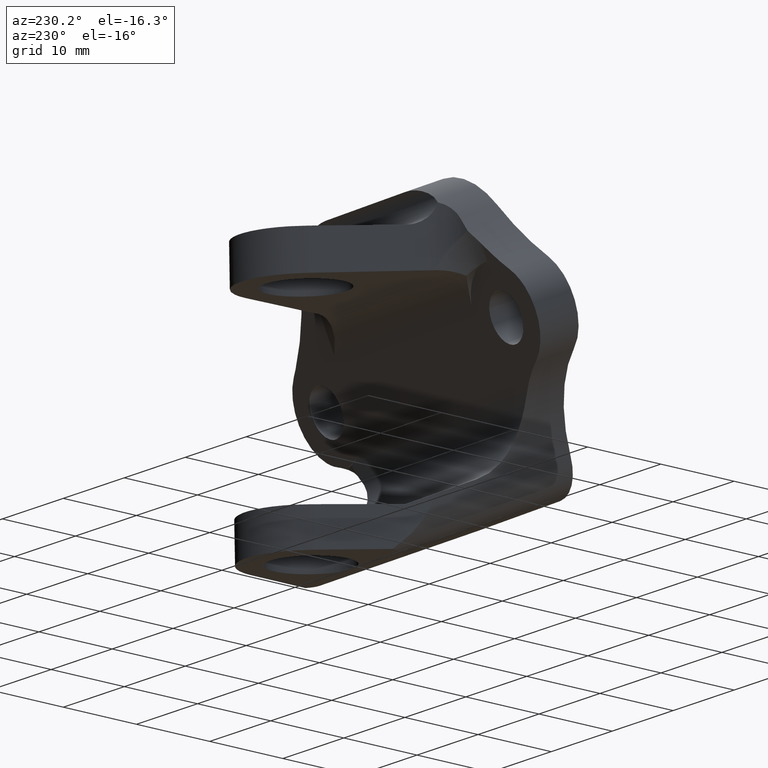
[diagram: clean part render]
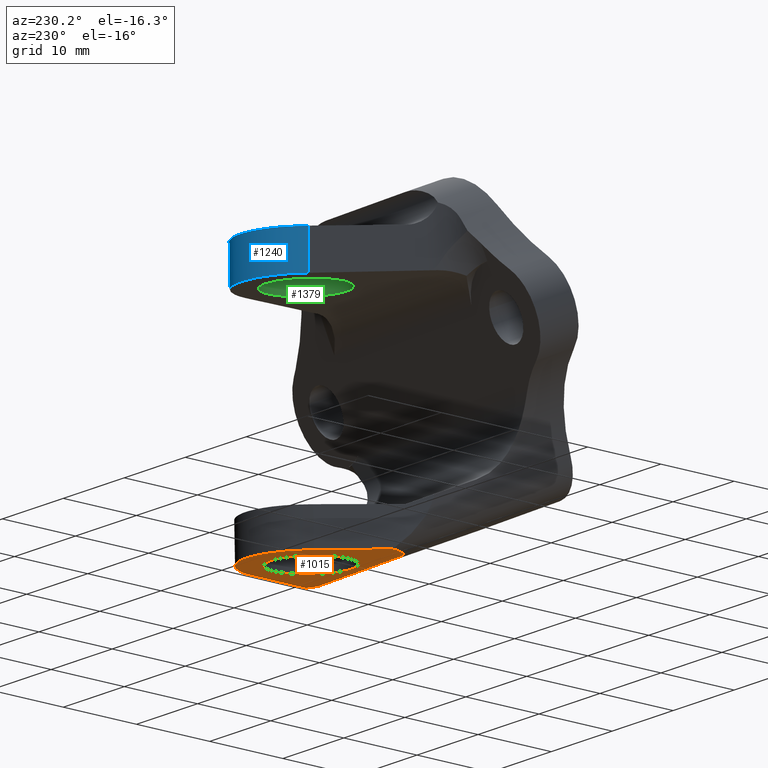
[diagram: same view with three faces highlighted in distinct colors, each labeled with its STEP entity id]
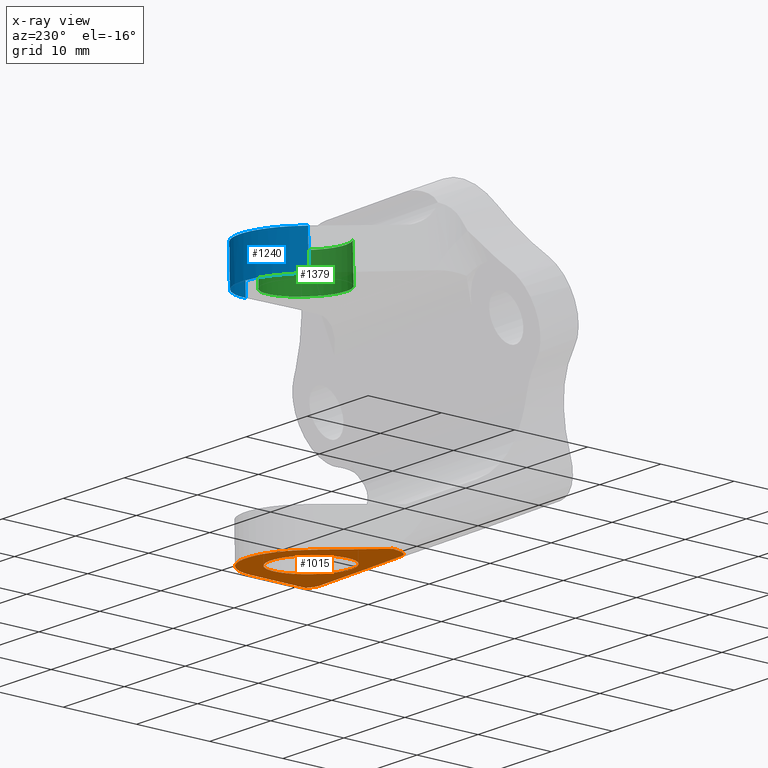
[diagram: x-ray of the same camera — body ghosted, the three highlighted faces saturated]
A machine part, auxiliary view with three faces highlighted in distinct colors.
The next image is the same camera in x-ray (body ghosted, the three faces saturated) — at least one of them is partly hidden behind the body in this view.
Their STEP definitions:

[orange] entity #1015 — the highlighted planar face has unit normal (-0.054, 0.0684, 0.9962).
#689=CARTESIAN_POINT('Vertex',(1325.33078434,272.202735292,140.875413136)) ;
#693=CARTESIAN_POINT('Control Point',(1325.33078434,272.202735292,140.875413136)) ;
#694=CARTESIAN_POINT('Control Point',(1325.69714129,272.138995932,140.899645128)) ;
#695=CARTESIAN_POINT('Control Point',(1326.08154677,272.170504241,140.918310004)) ;
#696=CARTESIAN_POINT('Control Point',(1326.44139555,272.2968065,140.929139325)) ;
#697=CARTESIAN_POINT('Control Point',(1326.77508478,272.468900159,140.935399791)) ;
#698=CARTESIAN_POINT('Control Point',(1327.08483714,272.677212456,140.937876748)) ;
#699=CARTESIAN_POINT('Vertex',(1327.08483396,272.677211334,140.937876608)) ;
#841=CARTESIAN_POINT('Line Origine',(1326.10066523,277.221816695,140.57236881)) ;
#845=CARTESIAN_POINT('Vertex',(1325.11649649,281.766422056,140.206861013)) ;
#879=CARTESIAN_POINT('Line Origine',(1316.85831356,273.676789123,140.315017488)) ;
#883=CARTESIAN_POINT('Vertex',(1308.38584277,275.150842954,139.75462184)) ;
#905=CARTESIAN_POINT('Axis2P3D Location',(1314.01555999,261.549827085,140.993975968)) ;
#911=CARTESIAN_POINT('Control Point',(1308.38584277,275.150842954,139.75462184)) ;
#912=CARTESIAN_POINT('Control Point',(1308.19572612,275.18391975,139.742046931)) ;
#913=CARTESIAN_POINT('Control Point',(1308.01011517,275.242322677,139.727976519)) ;
#914=CARTESIAN_POINT('Control Point',(1307.83388941,275.325229815,139.71273149)) ;
#915=CARTESIAN_POINT('Control Point',(1307.43662325,275.571389741,139.674293807)) ;
#916=CARTESIAN_POINT('Control Point',(1307.10658676,275.905141798,139.633482652)) ;
#917=CARTESIAN_POINT('Control Point',(1306.93499082,276.120176066,139.609412576)) ;
#918=CARTESIAN_POINT('Control Point',(1306.56608302,276.666681629,139.551880645)) ;
#919=CARTESIAN_POINT('Control Point',(1306.28737045,277.265935929,139.495613223)) ;
#920=CARTESIAN_POINT('Control Point',(1306.14741292,277.62545436,139.463332936)) ;
#921=CARTESIAN_POINT('Control Point',(1306.026224,277.992095768,139.431580476)) ;
#922=CARTESIAN_POINT('Control Point',(1305.92107699,278.363381398,139.400378344)) ;
#923=CARTESIAN_POINT('Vertex',(1305.92107717,278.363380445,139.40037842)) ;
#926=CARTESIAN_POINT('Line Origine',(1308.45884,281.641412057,139.3127339)) ;
#930=CARTESIAN_POINT('Vertex',(1310.99660283,284.919443669,139.22508938)) ;
#934=CARTESIAN_POINT('Control Point',(1310.99660283,284.919443669,139.22508938)) ;
#935=CARTESIAN_POINT('Control Point',(1311.4502488,285.505418766,139.209422202)) ;
#936=CARTESIAN_POINT('Control Point',(1311.97162548,286.039152189,139.201014031)) ;
#937=CARTESIAN_POINT('Control Point',(1312.55265291,286.510175583,139.200146077)) ;
#938=CARTESIAN_POINT('Control Point',(1313.81296386,287.309704988,139.213524543)) ;
#939=CARTESIAN_POINT('Control Point',(1315.22177459,287.800888308,139.256131138)) ;
#940=CARTESIAN_POINT('Control Point',(1315.95151931,287.96362761,139.284498843)) ;
#941=CARTESIAN_POINT('Control Point',(1317.4347658,288.117368757,139.354318519)) ;
#942=CARTESIAN_POINT('Control Point',(1318.91264724,287.928343696,139.447392413)) ;
#943=CARTESIAN_POINT('Control Point',(1319.63702791,287.748277808,139.499017066)) ;
#944=CARTESIAN_POINT('Control Point',(1321.0301654,287.223626525,139.610553011)) ;
#945=CARTESIAN_POINT('Control Point',(1322.26515786,286.394187697,139.734454903)) ;
#946=CARTESIAN_POINT('Control Point',(1322.83137693,285.909298888,139.798447038)) ;
#947=CARTESIAN_POINT('Control Point',(1323.7882929,284.873481449,139.921455726)) ;
#948=CARTESIAN_POINT('Control Point',(1324.49564065,283.655573857,140.043447736)) ;
#949=CARTESIAN_POINT('Control Point',(1324.76862991,283.046858086,140.100054918)) ;
#950=CARTESIAN_POINT('Control Point',(1324.97624966,282.414041218,140.154775114)) ;
#951=CARTESIAN_POINT('Control Point',(1325.11649649,281.766422056,140.206861013)) ;
#962=CARTESIAN_POINT('Control Point',(1314.24842243,276.098215447,140.007251638)) ;
#963=CARTESIAN_POINT('Control Point',(1314.71159279,275.740970401,140.056891361)) ;
#964=CARTESIAN_POINT('Control Point',(1315.22749084,275.451835097,140.104709983)) ;
#965=CARTESIAN_POINT('Control Point',(1315.78288649,275.2410752,140.149285379)) ;
#966=CARTESIAN_POINT('Control Point',(1316.93995376,274.988772033,140.229320301)) ;
#967=CARTESIAN_POINT('Control Point',(1318.12202528,275.079632401,140.287138004)) ;
#968=CARTESIAN_POINT('Control Point',(1318.70270618,275.212114488,140.309506019)) ;
#969=CARTESIAN_POINT('Control Point',(1319.8085052,275.643278279,140.339814561)) ;
#970=CARTESIAN_POINT('Control Point',(1320.74474698,276.373386183,140.340399657)) ;
#971=CARTESIAN_POINT('Control Point',(1321.15582478,276.804898563,140.33303582)) ;
#972=CARTESIAN_POINT('Control Point',(1321.83943206,277.775165053,140.303433371)) ;
#973=CARTESIAN_POINT('Control Point',(1322.21573928,278.89978346,140.246575081)) ;
#974=CARTESIAN_POINT('Control Point',(1322.31943097,279.485693948,140.211947567)) ;
#975=CARTESIAN_POINT('Control Point',(1322.35171839,280.669853995,140.13235613)) ;
#976=CARTESIAN_POINT('Control Point',(1322.04196226,281.81203885,140.037111936)) ;
#977=CARTESIAN_POINT('Control Point',(1321.80351296,282.355964854,139.986827024)) ;
#978=CARTESIAN_POINT('Control Point',(1321.37858872,283.031381355,139.917404418)) ;
#979=CARTESIAN_POINT('Control Point',(1320.83435354,283.604740871,139.848526494)) ;
#980=CARTESIAN_POINT('Control Point',(1320.68594205,283.745779187,139.830795691)) ;
#981=CARTESIAN_POINT('Control Point',(1320.53052401,283.878937646,139.813226463)) ;
#982=CARTESIAN_POINT('Control Point',(1320.36866681,284.003778717,139.795879614)) ;
#983=CARTESIAN_POINT('Vertex',(1314.24842243,276.098215447,140.007251638)) ;
#985=CARTESIAN_POINT('Vertex',(1320.36866681,284.003778717,139.795879614)) ;
#989=CARTESIAN_POINT('Control Point',(1320.36866681,284.003778717,139.795879614)) ;
#990=CARTESIAN_POINT('Control Point',(1319.90549645,284.361023763,139.746239891)) ;
#991=CARTESIAN_POINT('Control Point',(1319.38959839,284.650159067,139.698421268)) ;
#992=CARTESIAN_POINT('Control Point',(1318.83420275,284.860918964,139.653845873)) ;
#993=CARTESIAN_POINT('Control Point',(1317.67713548,285.11322213,139.573810951)) ;
#994=CARTESIAN_POINT('Control Point',(1316.49506396,285.022361763,139.515993248)) ;
#995=CARTESIAN_POINT('Control Point',(1315.91438306,284.889879675,139.493625233)) ;
#996=CARTESIAN_POINT('Control Point',(1314.80858404,284.458715885,139.46331669)) ;
#997=CARTESIAN_POINT('Control Point',(1313.87234226,283.728607982,139.462731594)) ;
#998=CARTESIAN_POINT('Control Point',(1313.46126446,283.297095598,139.470095431)) ;
#999=CARTESIAN_POINT('Control Point',(1312.77765718,282.326829109,139.49969788)) ;
#1000=CARTESIAN_POINT('Control Point',(1312.40134996,281.202210702,139.55655617)) ;
#1001=CARTESIAN_POINT('Control Point',(1312.29765827,280.616300217,139.591183684)) ;
#1002=CARTESIAN_POINT('Control Point',(1312.26537084,279.432140169,139.670775122)) ;
#1003=CARTESIAN_POINT('Control Point',(1312.57512698,278.289955313,139.766019315)) ;
#1004=CARTESIAN_POINT('Control Point',(1312.81357628,277.746029311,139.816304227)) ;
#1005=CARTESIAN_POINT('Control Point',(1313.23850052,277.070612808,139.885726833)) ;
#1006=CARTESIAN_POINT('Control Point',(1313.7827357,276.497253293,139.954604757)) ;
#1007=CARTESIAN_POINT('Control Point',(1313.93114719,276.356214977,139.97233556)) ;
#1008=CARTESIAN_POINT('Control Point',(1314.08656523,276.223056517,139.989904788)) ;
#1009=CARTESIAN_POINT('Control Point',(1314.24842243,276.098215447,140.007251638)) ;
#842=DIRECTION('Vector Direction',(0.211000658998,-0.974339759336,0.0783629713562)) ;
#880=DIRECTION('Vector Direction',(0.983115227494,-0.171043938009,0.0650263080575)) ;
#906=DIRECTION('Axis2P3D Direction',(-0.0539859037557,0.0684295973398,0.996194214199)) ;
#907=DIRECTION('Axis2P3D XDirection',(0.174842705495,0.982884205529,-0.0580402175807)) ;
#927=DIRECTION('Vector Direction',(0.612026158095,0.790555000159,-0.0211370180321)) ;
#908=AXIS2_PLACEMENT_3D('Plane Axis2P3D',#905,#906,#907) ;
#954=ORIENTED_EDGE('',*,*,#925,.T.) ;
#955=ORIENTED_EDGE('',*,*,#932,.T.) ;
#956=ORIENTED_EDGE('',*,*,#952,.T.) ;
#957=ORIENTED_EDGE('',*,*,#847,.T.) ;
#958=ORIENTED_EDGE('',*,*,#701,.F.) ;
#959=ORIENTED_EDGE('',*,*,#885,.F.) ;
#1012=ORIENTED_EDGE('',*,*,#987,.T.) ;
#1013=ORIENTED_EDGE('',*,*,#1010,.T.) ;
#1014=FACE_BOUND('',#1011,.T.) ;
#843=VECTOR('Line Direction',#842,1.) ;
#881=VECTOR('Line Direction',#880,1.) ;
#928=VECTOR('Line Direction',#927,1.) ;
#1015=ADVANCED_FACE('Hauptk\X2\00F6\X0\rper',(#960,#1014),#909,.F.) ;
#692=B_SPLINE_CURVE_WITH_KNOTS('',5,(#693,#694,#695,#696,#697,#698),.UNSPECIFIED.,.F.,.U.,(6,6),(0.,2.63502666146),.UNSPECIFIED.) ;
#910=B_SPLINE_CURVE_WITH_KNOTS('',5,(#911,#912,#913,#914,#915,#916,#917,#918,#919,#920,#921,#922),.UNSPECIFIED.,.F.,.U.,(6,3,3,6),(0.,1.36741628427,3.29998140105,6.03753938532),.UNSPECIFIED.) ;
#933=B_SPLINE_CURVE_WITH_KNOTS('',5,(#934,#935,#936,#937,#938,#939,#940,#941,#942,#943,#944,#945,#946,#947,#948,#949,#950,#951),.UNSPECIFIED.,.F.,.U.,(6,3,3,3,3,6),(0.,5.24121616462,10.484085666,15.7269552172,20.9698247957,25.6697859422),.UNSPECIFIED.) ;
#961=B_SPLINE_CURVE_WITH_KNOTS('',5,(#962,#963,#964,#965,#966,#967,#968,#969,#970,#971,#972,#973,#974,#975,#976,#977,#978,#979,#980,#981,#982),.UNSPECIFIED.,.F.,.U.,(6,3,3,3,3,3,6),(0.,4.15099327347,8.30409341507,12.4571935218,16.610293618,20.7633937562,22.2139791412),.UNSPECIFIED.) ;
#988=B_SPLINE_CURVE_WITH_KNOTS('',5,(#989,#990,#991,#992,#993,#994,#995,#996,#997,#998,#999,#1000,#1001,#1002,#1003,#1004,#1005,#1006,#1007,#1008,#1009),.UNSPECIFIED.,.F.,.U.,(6,3,3,3,3,3,6),(0.,4.15099327832,8.30409341547,12.4571935127,16.6102936138,20.7633937557,22.213979141),.UNSPECIFIED.) ;
#701=EDGE_CURVE('',#690,#700,#692,.T.) ;
#847=EDGE_CURVE('',#846,#700,#844,.T.) ;
#885=EDGE_CURVE('',#884,#690,#882,.T.) ;
#925=EDGE_CURVE('',#884,#924,#910,.T.) ;
#932=EDGE_CURVE('',#924,#931,#929,.T.) ;
#952=EDGE_CURVE('',#931,#846,#933,.T.) ;
#987=EDGE_CURVE('',#984,#986,#961,.T.) ;
#1010=EDGE_CURVE('',#986,#984,#988,.T.) ;
#953=EDGE_LOOP('',(#954,#955,#956,#957,#958,#959)) ;
#1011=EDGE_LOOP('',(#1012,#1013)) ;
#960=FACE_OUTER_BOUND('',#953,.T.) ;
#844=LINE('Line',#841,#843) ;
#882=LINE('Line',#879,#881) ;
#929=LINE('Line',#926,#928) ;
#909=PLANE('Plane',#908) ;
#690=VERTEX_POINT('',#689) ;
#700=VERTEX_POINT('',#699) ;
#846=VERTEX_POINT('',#845) ;
#884=VERTEX_POINT('',#883) ;
#924=VERTEX_POINT('',#923) ;
#931=VERTEX_POINT('',#930) ;
#984=VERTEX_POINT('',#983) ;
#986=VERTEX_POINT('',#985) ;

[blue] entity #1240 — the highlighted cylindrical surface (partial cylindrical patch) has radius 8 mm, axis along (-0.0541, 0.0685, 0.9962).
#1038=CARTESIAN_POINT('Line Origine',(1323.37453008,283.972555394,172.280483758)) ;
#1042=CARTESIAN_POINT('Vertex',(1323.51098481,283.799740745,169.768037312)) ;
#1044=CARTESIAN_POINT('Vertex',(1323.23807536,284.145370044,174.792930204)) ;
#1111=CARTESIAN_POINT('Control Point',(1309.1181817,287.298391657,173.811158572)) ;
#1112=CARTESIAN_POINT('Control Point',(1309.57182766,287.884366754,173.795491393)) ;
#1113=CARTESIAN_POINT('Control Point',(1310.09320435,288.418100177,173.787083222)) ;
#1114=CARTESIAN_POINT('Control Point',(1310.67423178,288.889123572,173.786215269)) ;
#1115=CARTESIAN_POINT('Control Point',(1311.93454273,289.688652976,173.799593735)) ;
#1116=CARTESIAN_POINT('Control Point',(1313.34335346,290.179836296,173.84220033)) ;
#1117=CARTESIAN_POINT('Control Point',(1314.07309818,290.342575598,173.870568035)) ;
#1118=CARTESIAN_POINT('Control Point',(1315.55634467,290.496316745,173.940387711)) ;
#1119=CARTESIAN_POINT('Control Point',(1317.03422611,290.307291684,174.033461604)) ;
#1120=CARTESIAN_POINT('Control Point',(1317.75860678,290.127225796,174.085086258)) ;
#1121=CARTESIAN_POINT('Control Point',(1319.15174427,289.602574512,174.196622202)) ;
#1122=CARTESIAN_POINT('Control Point',(1320.38673672,288.773135684,174.320524095)) ;
#1123=CARTESIAN_POINT('Control Point',(1320.95295579,288.288246877,174.38451623)) ;
#1124=CARTESIAN_POINT('Control Point',(1321.90987176,287.252429437,174.507524918)) ;
#1125=CARTESIAN_POINT('Control Point',(1322.61721952,286.034521844,174.629516928)) ;
#1126=CARTESIAN_POINT('Control Point',(1322.89020878,285.425806075,174.686124109)) ;
#1127=CARTESIAN_POINT('Control Point',(1323.09782852,284.792989206,174.740844306)) ;
#1128=CARTESIAN_POINT('Control Point',(1323.23807536,284.145370044,174.792930204)) ;
#1129=CARTESIAN_POINT('Vertex',(1309.1181817,287.298391657,173.811158572)) ;
#1208=CARTESIAN_POINT('Axis2P3D Location',(1316.56,280.999,153.684)) ;
#1214=CARTESIAN_POINT('Control Point',(1309.3915248,286.952213154,168.778281132)) ;
#1215=CARTESIAN_POINT('Control Point',(1310.29973543,288.123231532,168.731695772)) ;
#1216=CARTESIAN_POINT('Control Point',(1311.47883462,289.085385112,168.716007402)) ;
#1217=CARTESIAN_POINT('Control Point',(1312.86426221,289.754304274,168.734618004)) ;
#1218=CARTESIAN_POINT('Control Point',(1315.09337931,290.241213068,168.81185966)) ;
#1219=CARTESIAN_POINT('Control Point',(1317.30998891,289.957709862,168.95027572)) ;
#1220=CARTESIAN_POINT('Control Point',(1318.03429707,289.777728515,169.00251452)) ;
#1221=CARTESIAN_POINT('Control Point',(1320.05173277,289.018308961,169.168730741)) ;
#1222=CARTESIAN_POINT('Control Point',(1321.73704114,287.620138513,169.368877284)) ;
#1223=CARTESIAN_POINT('Control Point',(1322.61759397,286.471720706,169.506987966)) ;
#1224=CARTESIAN_POINT('Control Point',(1323.21510012,285.168801661,169.642728044)) ;
#1225=CARTESIAN_POINT('Control Point',(1323.51098481,283.799740745,169.768037312)) ;
#1226=CARTESIAN_POINT('Vertex',(1309.3915248,286.952213154,168.778281132)) ;
#1229=CARTESIAN_POINT('Line Origine',(1310.24812306,285.867364462,153.006329787)) ;
#1039=DIRECTION('Vector Direction',(-0.0541041087323,0.0685207689845,0.996181534479)) ;
#1209=DIRECTION('Axis2P3D Direction',(-0.0541041087323,0.0685207689845,0.996181534479)) ;
#1210=DIRECTION('Axis2P3D XDirection',(0.975988774044,0.214434720392,0.0382578571225)) ;
#1230=DIRECTION('Vector Direction',(-0.0541041087323,0.0685207689845,0.996181534479)) ;
#1211=AXIS2_PLACEMENT_3D('Cylinder Axis2P3D',#1208,#1209,#1210) ;
#1235=ORIENTED_EDGE('',*,*,#1228,.F.) ;
#1236=ORIENTED_EDGE('',*,*,#1233,.T.) ;
#1237=ORIENTED_EDGE('',*,*,#1131,.T.) ;
#1238=ORIENTED_EDGE('',*,*,#1046,.F.) ;
#1040=VECTOR('Line Direction',#1039,1.) ;
#1231=VECTOR('Line Direction',#1230,1.) ;
#1240=ADVANCED_FACE('Hauptk\X2\00F6\X0\rper',(#1239),#1212,.T.) ;
#1110=B_SPLINE_CURVE_WITH_KNOTS('',5,(#1111,#1112,#1113,#1114,#1115,#1116,#1117,#1118,#1119,#1120,#1121,#1122,#1123,#1124,#1125,#1126,#1127,#1128),.UNSPECIFIED.,.F.,.U.,(6,3,3,3,3,6),(0.,5.24121616113,10.4840856642,15.7269552148,20.9698247952,25.6697859447),.UNSPECIFIED.) ;
#1213=B_SPLINE_CURVE_WITH_KNOTS('',5,(#1214,#1215,#1216,#1217,#1218,#1219,#1220,#1221,#1222,#1223,#1224,#1225),.UNSPECIFIED.,.F.,.U.,(6,3,3,6),(0.,10.4840373754,15.72657142,25.6703582986),.UNSPECIFIED.) ;
#1212=CYLINDRICAL_SURFACE('generated cylinder',#1211,8.) ;
#1046=EDGE_CURVE('',#1043,#1045,#1041,.T.) ;
#1131=EDGE_CURVE('',#1130,#1045,#1110,.T.) ;
#1228=EDGE_CURVE('',#1227,#1043,#1213,.T.) ;
#1233=EDGE_CURVE('',#1227,#1130,#1232,.T.) ;
#1234=EDGE_LOOP('',(#1235,#1236,#1237,#1238)) ;
#1239=FACE_OUTER_BOUND('',#1234,.T.) ;
#1041=LINE('Line',#1038,#1040) ;
#1232=LINE('Line',#1229,#1231) ;
#1043=VERTEX_POINT('',#1042) ;
#1045=VERTEX_POINT('',#1044) ;
#1130=VERTEX_POINT('',#1129) ;
#1227=VERTEX_POINT('',#1226) ;

[green] entity #1379 — the highlighted cylindrical surface (partial cylindrical patch) has radius 5 mm, axis along (-0.0541, 0.0685, 0.9962).
#1016=CARTESIAN_POINT('Axis2P3D Location',(1316.56,280.999,153.684)) ;
#1175=CARTESIAN_POINT('Vertex',(1318.49024567,286.382726705,174.381948805)) ;
#1177=CARTESIAN_POINT('Vertex',(1312.3700013,278.477163435,174.593320829)) ;
#1181=CARTESIAN_POINT('Control Point',(1312.3700013,278.477163435,174.593320829)) ;
#1182=CARTESIAN_POINT('Control Point',(1312.83317165,278.119918389,174.642960552)) ;
#1183=CARTESIAN_POINT('Control Point',(1313.34906971,277.830783085,174.690779175)) ;
#1184=CARTESIAN_POINT('Control Point',(1313.90446536,277.620023187,174.73535457)) ;
#1185=CARTESIAN_POINT('Control Point',(1315.06153263,277.367720021,174.815389492)) ;
#1186=CARTESIAN_POINT('Control Point',(1316.24360415,277.458580389,174.873207195)) ;
#1187=CARTESIAN_POINT('Control Point',(1316.82428504,277.591062476,174.89557521)) ;
#1188=CARTESIAN_POINT('Control Point',(1317.93008406,278.022226267,174.925883753)) ;
#1189=CARTESIAN_POINT('Control Point',(1318.86632584,278.75233417,174.926468848)) ;
#1190=CARTESIAN_POINT('Control Point',(1319.27740365,279.183846552,174.919105011)) ;
#1191=CARTESIAN_POINT('Control Point',(1319.96101093,280.154113043,174.889502562)) ;
#1192=CARTESIAN_POINT('Control Point',(1320.33731815,281.278731449,174.832644273)) ;
#1193=CARTESIAN_POINT('Control Point',(1320.44100984,281.864641934,174.798016759)) ;
#1194=CARTESIAN_POINT('Control Point',(1320.47329726,283.048801981,174.718425321)) ;
#1195=CARTESIAN_POINT('Control Point',(1320.16354113,284.190986837,174.623181128)) ;
#1196=CARTESIAN_POINT('Control Point',(1319.92509182,284.734912843,174.572896215)) ;
#1197=CARTESIAN_POINT('Control Point',(1319.50016758,285.410329344,174.503473609)) ;
#1198=CARTESIAN_POINT('Control Point',(1318.9559324,285.983688859,174.434595686)) ;
#1199=CARTESIAN_POINT('Control Point',(1318.80752091,286.124727175,174.416864883)) ;
#1200=CARTESIAN_POINT('Control Point',(1318.65210287,286.257885634,174.399295655)) ;
#1201=CARTESIAN_POINT('Control Point',(1318.49024567,286.382726705,174.381948805)) ;
#1324=CARTESIAN_POINT('Line Origine',(1319.62012219,284.951781635,153.578313988)) ;
#1328=CARTESIAN_POINT('Vertex',(1318.76403393,286.035984423,169.340874928)) ;
#1331=CARTESIAN_POINT('Line Origine',(1313.49987781,277.046218365,153.789686012)) ;
#1335=CARTESIAN_POINT('Vertex',(1312.63820381,278.137495285,169.655093429)) ;
#1360=CARTESIAN_POINT('Control Point',(1312.63820381,278.137495285,169.655093429)) ;
#1361=CARTESIAN_POINT('Control Point',(1313.56437284,277.423308249,169.760736522)) ;
#1362=CARTESIAN_POINT('Control Point',(1314.70174073,276.981405133,169.85554881)) ;
#1363=CARTESIAN_POINT('Control Point',(1315.94428966,276.895652143,169.927267835)) ;
#1364=CARTESIAN_POINT('Control Point',(1317.73017326,277.317551599,169.98659833)) ;
#1365=CARTESIAN_POINT('Control Point',(1319.1351144,278.411292914,169.972134393)) ;
#1366=CARTESIAN_POINT('Control Point',(1319.54652147,278.842359246,169.959008026)) ;
#1367=CARTESIAN_POINT('Control Point',(1320.69262261,280.465711523,169.888535283)) ;
#1368=CARTESIAN_POINT('Control Point',(1320.97709144,282.521784562,169.73837531)) ;
#1369=CARTESIAN_POINT('Control Point',(1320.64913262,283.981436297,169.604122246)) ;
#1370=CARTESIAN_POINT('Control Point',(1319.85241088,285.19671569,169.465020201)) ;
#1371=CARTESIAN_POINT('Control Point',(1318.76403393,286.035984423,169.340874928)) ;
#1017=DIRECTION('Axis2P3D Direction',(-0.0541041087323,0.0685207689845,0.996181534479)) ;
#1018=DIRECTION('Axis2P3D XDirection',(0.612024437883,0.790556326968,-0.0211372023939)) ;
#1325=DIRECTION('Vector Direction',(-0.0541041087323,0.0685207689845,0.996181534479)) ;
#1332=DIRECTION('Vector Direction',(-0.0541041087323,0.0685207689845,0.996181534479)) ;
#1019=AXIS2_PLACEMENT_3D('Cylinder Axis2P3D',#1016,#1017,#1018) ;
#1374=ORIENTED_EDGE('',*,*,#1337,.T.) ;
#1375=ORIENTED_EDGE('',*,*,#1202,.T.) ;
#1376=ORIENTED_EDGE('',*,*,#1330,.F.) ;
#1377=ORIENTED_EDGE('',*,*,#1372,.F.) ;
#1326=VECTOR('Line Direction',#1325,1.) ;
#1333=VECTOR('Line Direction',#1332,1.) ;
#1379=ADVANCED_FACE('Hauptk\X2\00F6\X0\rper',(#1378),#1020,.F.) ;
#1180=B_SPLINE_CURVE_WITH_KNOTS('',5,(#1181,#1182,#1183,#1184,#1185,#1186,#1187,#1188,#1189,#1190,#1191,#1192,#1193,#1194,#1195,#1196,#1197,#1198,#1199,#1200,#1201),.UNSPECIFIED.,.F.,.U.,(6,3,3,3,3,3,6),(0.,4.15099327066,8.30409340911,12.4571935097,16.6102936107,20.7633937439,22.2139791289),.UNSPECIFIED.) ;
#1359=B_SPLINE_CURVE_WITH_KNOTS('',5,(#1360,#1361,#1362,#1363,#1364,#1365,#1366,#1367,#1368,#1369,#1370,#1371),.UNSPECIFIED.,.F.,.U.,(6,3,3,6),(0.,8.30365177717,12.4567837854,22.2147252562),.UNSPECIFIED.) ;
#1020=CYLINDRICAL_SURFACE('generated cylinder',#1019,5.) ;
#1202=EDGE_CURVE('',#1178,#1176,#1180,.T.) ;
#1330=EDGE_CURVE('',#1329,#1176,#1327,.T.) ;
#1337=EDGE_CURVE('',#1336,#1178,#1334,.T.) ;
#1372=EDGE_CURVE('',#1336,#1329,#1359,.T.) ;
#1373=EDGE_LOOP('',(#1374,#1375,#1376,#1377)) ;
#1378=FACE_OUTER_BOUND('',#1373,.T.) ;
#1327=LINE('Line',#1324,#1326) ;
#1334=LINE('Line',#1331,#1333) ;
#1176=VERTEX_POINT('',#1175) ;
#1178=VERTEX_POINT('',#1177) ;
#1329=VERTEX_POINT('',#1328) ;
#1336=VERTEX_POINT('',#1335) ;